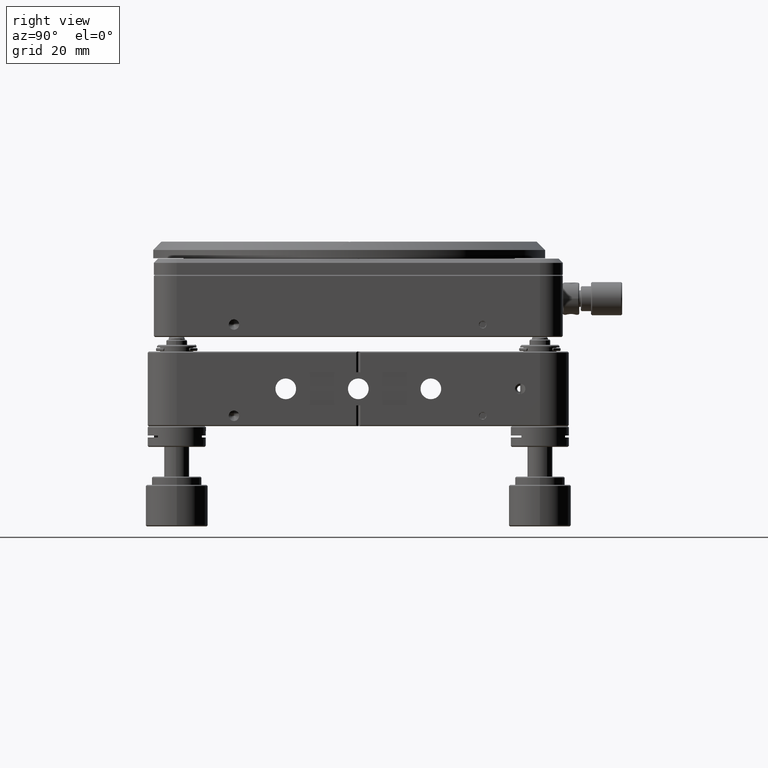
[diagram: clean part render]
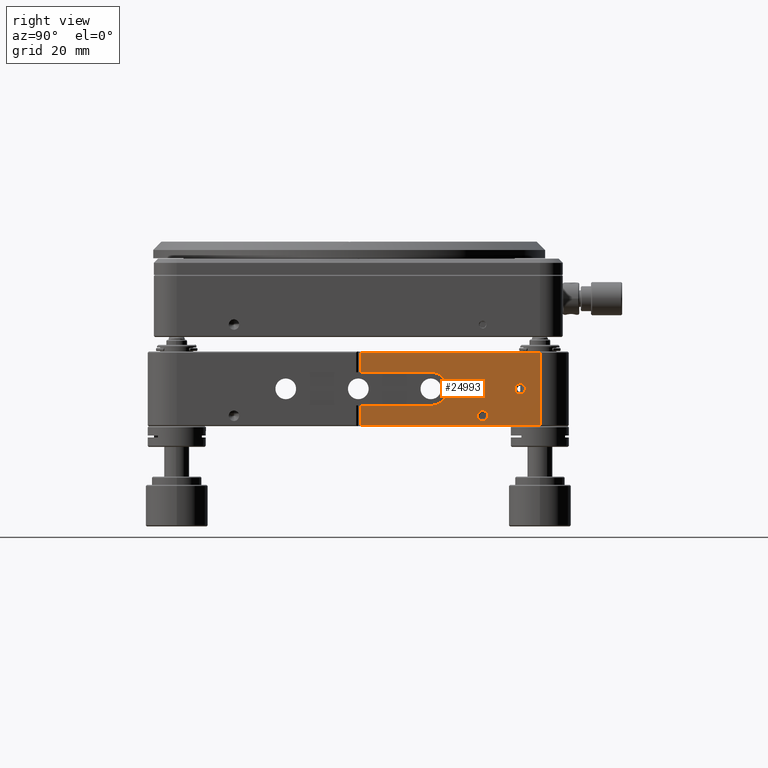
[diagram: same view with one face highlighted and labeled with its STEP entity id]
A machine part, right view. The second image highlights one B-rep face of the part: STEP entity #24993.
In plain terms, the highlighted planar face has unit normal (-1, -0, 0).
Its self-contained STEP definition (entity closure, byte-faithful):
#282 = AXIS2_PLACEMENT_3D ( 'NONE', #801, #15567, #1017 ) ;
#801 = CARTESIAN_POINT ( 'NONE',  ( 50.79999999999999005, 30.00000000000002842, -6.499999999999999112 ) ) ;
#811 = LINE ( 'NONE', #8758, #30617 ) ;
#941 = DIRECTION ( 'NONE',  ( 0.000000000000000000, 0.000000000000000000, 1.000000000000000000 ) ) ;
#1017 = DIRECTION ( 'NONE',  ( 0.000000000000000000, 0.000000000000000000, -1.000000000000000000 ) ) ;
#2396 = EDGE_CURVE ( 'NONE', #15807, #42547, #15750, .T. ) ;
#2532 = CARTESIAN_POINT ( 'NONE',  ( 50.79999999999999005, 30.00000000000002842, -7.749999999999992895 ) ) ;
#2580 = ORIENTED_EDGE ( 'NONE', *, *, #13885, .F. ) ;
#2603 = DIRECTION ( 'NONE',  ( 6.829619984160658046E-17, -1.000000000000000000, 0.000000000000000000 ) ) ;
#3965 = VERTEX_POINT ( 'NONE', #10719 ) ;
#3968 = VERTEX_POINT ( 'NONE', #14596 ) ;
#4456 = CARTESIAN_POINT ( 'NONE',  ( 50.79999999999999005, 39.05000000000001847, 0.000000000000000000 ) ) ;
#5067 = VERTEX_POINT ( 'NONE', #25240 ) ;
#5414 = DIRECTION ( 'NONE',  ( 0.000000000000000000, 1.000000000000000000, 0.000000000000000000 ) ) ;
#5567 = CARTESIAN_POINT ( 'NONE',  ( 50.79999999999999005, 0.5000000000000213163, 9.000000000000001776 ) ) ;
#5802 = EDGE_LOOP ( 'NONE', ( #45657, #30523 ) ) ;
#6288 = DIRECTION ( 'NONE',  ( 0.000000000000000000, 0.000000000000000000, 1.000000000000000000 ) ) ;
#6335 = EDGE_CURVE ( 'NONE', #35123, #3968, #33085, .T. ) ;
#6697 = EDGE_CURVE ( 'NONE', #5067, #28699, #41162, .T. ) ;
#6824 = ORIENTED_EDGE ( 'NONE', *, *, #2396, .F. ) ;
#7547 = VERTEX_POINT ( 'NONE', #40823 ) ;
#7553 = DIRECTION ( 'NONE',  ( 0.000000000000000000, 0.000000000000000000, -1.000000000000000000 ) ) ;
#8347 = VERTEX_POINT ( 'NONE', #2532 ) ;
#8758 = CARTESIAN_POINT ( 'NONE',  ( 50.79999999999999005, 50.80000000000000426, -3.999999999999998224 ) ) ;
#9211 = ORIENTED_EDGE ( 'NONE', *, *, #9463, .F. ) ;
#9392 = CARTESIAN_POINT ( 'NONE',  ( 50.79999999999999005, 0.5000000000000213163, 8.749999999999998224 ) ) ;
#9396 = CARTESIAN_POINT ( 'NONE',  ( 50.79999999999999005, 50.80000000000000426, -8.750000000000014211 ) ) ;
#9463 = EDGE_CURVE ( 'NONE', #42547, #5067, #38982, .T. ) ;
#9478 = VECTOR ( 'NONE', #18811, 1000.000000000000000 ) ;
#9498 = EDGE_LOOP ( 'NONE', ( #12267, #33962 ) ) ;
#10015 = DIRECTION ( 'NONE',  ( -3.414809992080186658E-17, 1.000000000000000000, -3.414809992080329023E-17 ) ) ;
#10127 = PLANE ( 'NONE',  #11085 ) ;
#10373 = VERTEX_POINT ( 'NONE', #16227 ) ;
#10719 = CARTESIAN_POINT ( 'NONE',  ( 50.79999999999999005, 21.50000000000002487, -4.592425496802558589E-15 ) ) ;
#10730 = CARTESIAN_POINT ( 'NONE',  ( 50.79999999999999005, 17.50000000000002487, -4.592425496802558589E-15 ) ) ;
#10795 = EDGE_LOOP ( 'NONE', ( #27898, #36043, #2580, #39735, #21373, #36439, #15630, #9211, #6824 ) ) ;
#11062 = DIRECTION ( 'NONE',  ( 6.829619984160658046E-17, -1.000000000000000000, 0.000000000000000000 ) ) ;
#11085 = AXIS2_PLACEMENT_3D ( 'NONE', #25130, #28765, #11062 ) ;
#11815 = CIRCLE ( 'NONE', #41989, 4.000000000000000000 ) ;
#11892 = CARTESIAN_POINT ( 'NONE',  ( 50.79999999999999005, 30.00000000000002842, -6.499999999999999112 ) ) ;
#12089 = AXIS2_PLACEMENT_3D ( 'NONE', #45071, #27140, #12863 ) ;
#12267 = ORIENTED_EDGE ( 'NONE', *, *, #6335, .F. ) ;
#12863 = DIRECTION ( 'NONE',  ( 0.000000000000000000, 0.000000000000000000, -1.000000000000000000 ) ) ;
#12941 = EDGE_CURVE ( 'NONE', #29533, #3965, #11815, .T. ) ;
#13135 = EDGE_CURVE ( 'NONE', #40937, #8347, #25008, .T. ) ;
#13286 = LINE ( 'NONE', #33864, #9478 ) ;
#13885 = EDGE_CURVE ( 'NONE', #10373, #7547, #13286, .T. ) ;
#14515 = VECTOR ( 'NONE', #34684, 1000.000000000000000 ) ;
#14596 = CARTESIAN_POINT ( 'NONE',  ( 50.79999999999999005, 39.05000000000001847, 1.249999999999987121 ) ) ;
#15567 = DIRECTION ( 'NONE',  ( 1.000000000000000000, 0.000000000000000000, 0.000000000000000000 ) ) ;
#15630 = ORIENTED_EDGE ( 'NONE', *, *, #6697, .F. ) ;
#15750 = LINE ( 'NONE', #37841, #14515 ) ;
#15807 = VERTEX_POINT ( 'NONE', #39795 ) ;
#16227 = CARTESIAN_POINT ( 'NONE',  ( 50.79999999999999005, 17.50000000000002132, 3.999999999999994671 ) ) ;
#16970 = EDGE_CURVE ( 'NONE', #26004, #15807, #46553, .T. ) ;
#17218 = EDGE_CURVE ( 'NONE', #3968, #35123, #22926, .T. ) ;
#17349 = EDGE_CURVE ( 'NONE', #7547, #26004, #17457, .T. ) ;
#17457 = LINE ( 'NONE', #5567, #33475 ) ;
#17761 = DIRECTION ( 'NONE',  ( 0.000000000000000000, 1.000000000000000000, 0.000000000000000000 ) ) ;
#18103 = FACE_BOUND ( 'NONE', #5802, .T. ) ;
#18811 = DIRECTION ( 'NONE',  ( 6.829619984160658046E-17, -1.000000000000000000, 0.000000000000000000 ) ) ;
#21154 = EDGE_CURVE ( 'NONE', #28699, #29533, #811, .T. ) ;
#21293 = CARTESIAN_POINT ( 'NONE',  ( 50.79999999998104698, 43.80000000000000426, -8.750000000005126566 ) ) ;
#21373 = ORIENTED_EDGE ( 'NONE', *, *, #12941, .F. ) ;
#21913 = DIRECTION ( 'NONE',  ( 0.000000000000000000, 0.000000000000000000, -1.000000000000000000 ) ) ;
#22410 = DIRECTION ( 'NONE',  ( 1.000000000000000000, 0.000000000000000000, 0.000000000000000000 ) ) ;
#22678 = AXIS2_PLACEMENT_3D ( 'NONE', #11892, #40753, #7553 ) ;
#22926 = CIRCLE ( 'NONE', #12089, 1.249999999999987121 ) ;
#23554 = DIRECTION ( 'NONE',  ( -6.829619984160658046E-17, 1.000000000000000000, -0.000000000000000000 ) ) ;
#24993 = ADVANCED_FACE ( 'NONE', ( #44022, #18103, #46928 ), #10127, .F. ) ;
#25002 = CARTESIAN_POINT ( 'NONE',  ( 50.79999999999999005, 17.50000000000002487, -4.592425496802558589E-15 ) ) ;
#25008 = CIRCLE ( 'NONE', #22678, 1.249999999999994227 ) ;
#25130 = CARTESIAN_POINT ( 'NONE',  ( 50.79999999999999005, 50.80000000000000426, 9.000000000000001776 ) ) ;
#25240 = CARTESIAN_POINT ( 'NONE',  ( 50.79999999999999005, 0.5000000000000205391, -8.750000000000014211 ) ) ;
#25254 = VECTOR ( 'NONE', #2603, 1000.000000000000000 ) ;
#25342 = CARTESIAN_POINT ( 'NONE',  ( 50.79999999999999005, 39.05000000000001847, -1.249999999999987121 ) ) ;
#26004 = VERTEX_POINT ( 'NONE', #9392 ) ;
#26742 = AXIS2_PLACEMENT_3D ( 'NONE', #25002, #42940, #5414 ) ;
#27140 = DIRECTION ( 'NONE',  ( 1.000000000000000000, 0.000000000000000000, 0.000000000000000000 ) ) ;
#27898 = ORIENTED_EDGE ( 'NONE', *, *, #16970, .F. ) ;
#28090 = CIRCLE ( 'NONE', #282, 1.249999999999994227 ) ;
#28408 = DIRECTION ( 'NONE',  ( 1.000000000000000000, 4.440892098500625176E-16, 0.000000000000000000 ) ) ;
#28699 = VERTEX_POINT ( 'NONE', #41781 ) ;
#28765 = DIRECTION ( 'NONE',  ( -1.000000000000000000, -6.829619984160658046E-17, 0.000000000000000000 ) ) ;
#29076 = CIRCLE ( 'NONE', #26742, 4.000000000000000000 ) ;
#29194 = AXIS2_PLACEMENT_3D ( 'NONE', #4456, #22410, #21913 ) ;
#29533 = VERTEX_POINT ( 'NONE', #35575 ) ;
#30237 = EDGE_CURVE ( 'NONE', #8347, #40937, #28090, .T. ) ;
#30523 = ORIENTED_EDGE ( 'NONE', *, *, #13135, .F. ) ;
#30617 = VECTOR ( 'NONE', #23554, 1000.000000000000000 ) ;
#31577 = CARTESIAN_POINT ( 'NONE',  ( 50.79999999999999716, 3.452372901993211299E-15, 8.749999999999998224 ) ) ;
#32766 = EDGE_CURVE ( 'NONE', #3965, #10373, #29076, .T. ) ;
#33085 = CIRCLE ( 'NONE', #29194, 1.249999999999987121 ) ;
#33475 = VECTOR ( 'NONE', #6288, 1000.000000000000000 ) ;
#33864 = CARTESIAN_POINT ( 'NONE',  ( 50.79999999999999005, 50.80000000000000426, 3.999999999999994671 ) ) ;
#33962 = ORIENTED_EDGE ( 'NONE', *, *, #17218, .F. ) ;
#34684 = DIRECTION ( 'NONE',  ( 0.000000000000000000, 0.000000000000000000, -1.000000000000000000 ) ) ;
#35123 = VERTEX_POINT ( 'NONE', #25342 ) ;
#35575 = CARTESIAN_POINT ( 'NONE',  ( 50.79999999999999005, 17.50000000000002132, -4.000000000000000000 ) ) ;
#35841 = CARTESIAN_POINT ( 'NONE',  ( 50.79999999999999005, 30.00000000000002842, -5.250000000000004441 ) ) ;
#36043 = ORIENTED_EDGE ( 'NONE', *, *, #17349, .F. ) ;
#36439 = ORIENTED_EDGE ( 'NONE', *, *, #21154, .F. ) ;
#36974 = VECTOR ( 'NONE', #941, 1000.000000000000000 ) ;
#37841 = CARTESIAN_POINT ( 'NONE',  ( 50.79999999999998295, 43.80000000000000426, 9.000000000000001776 ) ) ;
#38982 = LINE ( 'NONE', #9396, #25254 ) ;
#39735 = ORIENTED_EDGE ( 'NONE', *, *, #32766, .F. ) ;
#39795 = CARTESIAN_POINT ( 'NONE',  ( 50.80000000000249116, 43.80000000000000426, 8.749999999972713383 ) ) ;
#39946 = VECTOR ( 'NONE', #10015, 1000.000000000000000 ) ;
#40753 = DIRECTION ( 'NONE',  ( 1.000000000000000000, 0.000000000000000000, 0.000000000000000000 ) ) ;
#40823 = CARTESIAN_POINT ( 'NONE',  ( 50.79999999999999005, 0.5000000000000200950, 3.999999999999996447 ) ) ;
#40937 = VERTEX_POINT ( 'NONE', #35841 ) ;
#41162 = LINE ( 'NONE', #41645, #36974 ) ;
#41645 = CARTESIAN_POINT ( 'NONE',  ( 50.79999999999999005, 0.5000000000000213163, 9.000000000000001776 ) ) ;
#41781 = CARTESIAN_POINT ( 'NONE',  ( 50.79999999999999005, 0.5000000000000200950, -3.999999999999998224 ) ) ;
#41989 = AXIS2_PLACEMENT_3D ( 'NONE', #10730, #28408, #17761 ) ;
#42547 = VERTEX_POINT ( 'NONE', #21293 ) ;
#42940 = DIRECTION ( 'NONE',  ( 1.000000000000000000, 4.440892098500625176E-16, 0.000000000000000000 ) ) ;
#44022 = FACE_OUTER_BOUND ( 'NONE', #10795, .T. ) ;
#45071 = CARTESIAN_POINT ( 'NONE',  ( 50.79999999999999005, 39.05000000000001847, 0.000000000000000000 ) ) ;
#45657 = ORIENTED_EDGE ( 'NONE', *, *, #30237, .F. ) ;
#46553 = LINE ( 'NONE', #31577, #39946 ) ;
#46928 = FACE_BOUND ( 'NONE', #9498, .T. ) ;